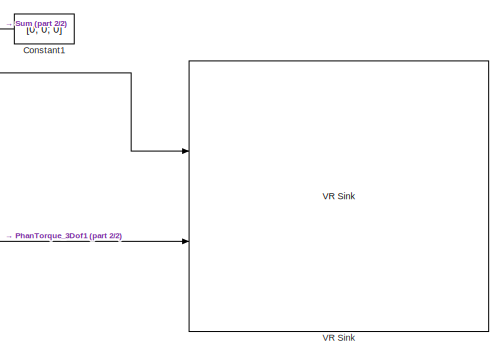
[diagram: root canvas - part 1/2, right side, full height]
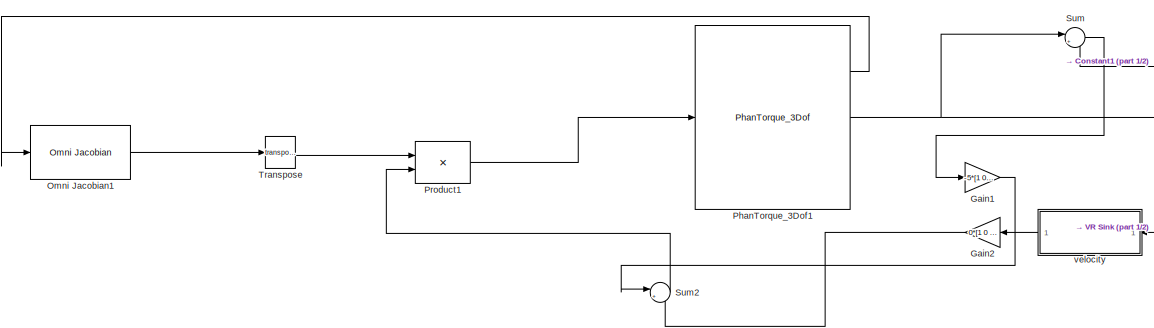
[diagram: root canvas - part 2/2, left side, full height]
MODEL slx_abec867f709c
KIND model
CONFIG AbsTol = auto
CONFIG EnableMultiTasking = off
CONFIG FixedStep = 0.001
CONFIG MaxStep = auto
CONFIG MinStep = auto
CONFIG RelTol = 1e-3
CONFIG SampleTimeConstraint = Unconstrained
CONFIG SolverName = FixedStepDiscrete
CONFIG StartTime = 0.0
CONFIG StopTime = inf
BLOCK [Constant] Constant1
  Value = [0; 0; 0]
BLOCK [Gain] Gain1
  Gain = -5*[1 0 0; 0 1 0; 0 0 0]
  Multiplication = Matrix(K*u)
  NameLocation = top
BLOCK [Gain] Gain2
  Gain = 0*[1 0 0; 0 1 0; 0 0 0]
  Multiplication = Matrix(K*u)
  NameLocation = top
BLOCK [Reference] Omni Jacobian1  REF=PhanTorque_3Dof_Library_64Bits/Omni Jacobian
  Ports = [1, 1]
  SourceBlock = PhanTorque_3Dof_Library_64Bits/Omni Jacobian
BLOCK [Reference] PhanTorque_3Dof1  REF=PhanTorque_3Dof_Library_64Bits/PhanTorque_3Dof
  Ports = [1, 3]
  SourceBlock = PhanTorque_3Dof_Library_64Bits/PhanTorque_3Dof
BLOCK [Product] Product1
  Multiplication = Matrix(*)
  Ports = [2, 1]
BLOCK [Sum] Sum
  Inputs = |+-
  Ports = [2, 1]
BLOCK [Sum] Sum2
  Inputs = |++
  Ports = [2, 1]
BLOCK [Math] Transpose
  Operator = transpose
  Ports = [1, 1]
BLOCK [Reference] VR Sink  REF=vrlib/VR Sink
  InstantiateOnLoad = on
  Ports = [2]
  SourceBlock = vrlib/VR Sink
  SourceProductBaseCode = SL
  SourceType = Virtual Reality Sink
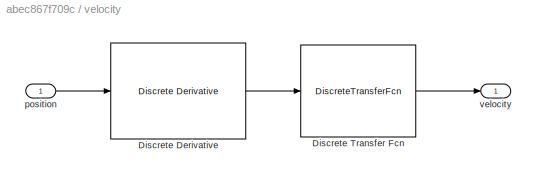
BLOCK [SubSystem] velocity
  Ports = [1, 1]
  RequestExecContextInheritance = off
BLOCK [Reference] velocity/Discrete Derivative  REF=simulink/Discrete/Discrete Derivative
  Ports = [1, 1]
  SourceBlock = simulink/Discrete/Discrete Derivative
  SourceProductBaseCode = SL
  SourceType = Discrete Derivative
BLOCK [DiscreteTransferFcn] velocity/Discrete Transfer Fcn
  Denominator = [1 -(1-0.001/0.2)]
  InputPortMap = u0
  Numerator = [0.001/0.2]
  Ports = [1, 1]
BLOCK [Inport] velocity/position
BLOCK [Outport] velocity/velocity
  VectorParamsAs1DForOutWhenUnconnected = off
NET Constant1:1 -> Sum:2, VR Sink:1
LINE Gain1:1 -> Sum2:1
LINE Gain2:1 -> Sum2:2
LINE Omni Jacobian1:1 -> Transpose:1
LINE PhanTorque_3Dof1:1 -> Omni Jacobian1:1
NET PhanTorque_3Dof1:2 -> Sum:1, VR Sink:2, velocity:1
LINE Product1:1 -> PhanTorque_3Dof1:1
LINE Sum2:1 -> Product1:2
LINE Sum:1 -> Gain1:1
LINE Transpose:1 -> Product1:1
LINE velocity/Discrete Derivative:1 -> velocity/Discrete Transfer Fcn:1
LINE velocity/Discrete Transfer Fcn:1 -> velocity/velocity:1
LINE velocity/position:1 -> velocity/Discrete Derivative:1
LINE velocity:1 -> Gain2:1
note: NET lines group one-source signal fan-out (src -> all destinations, sorted); 1:1 wires keep LINE
